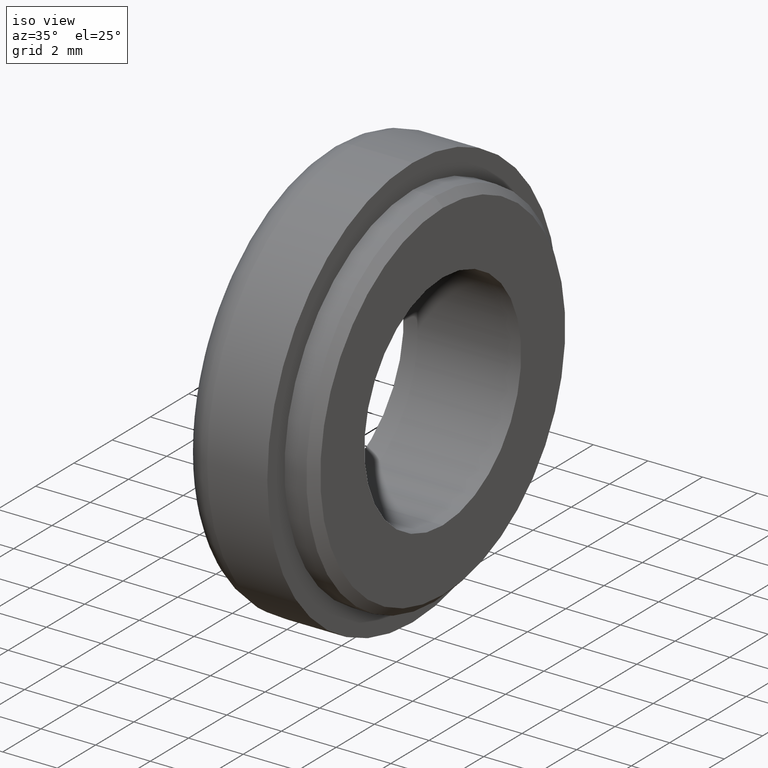
[diagram: clean part render]
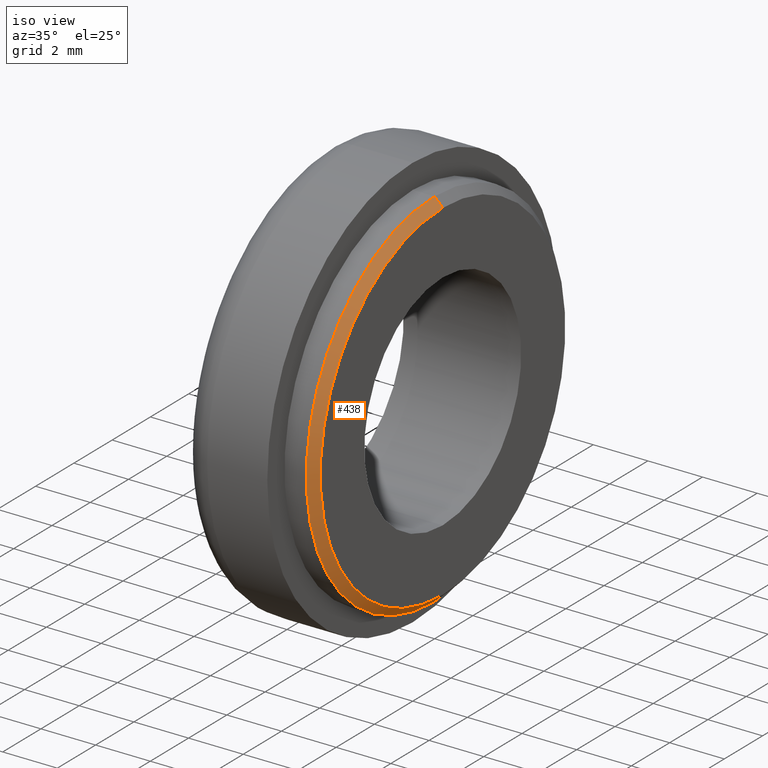
[diagram: same view with one face highlighted and labeled with its STEP entity id]
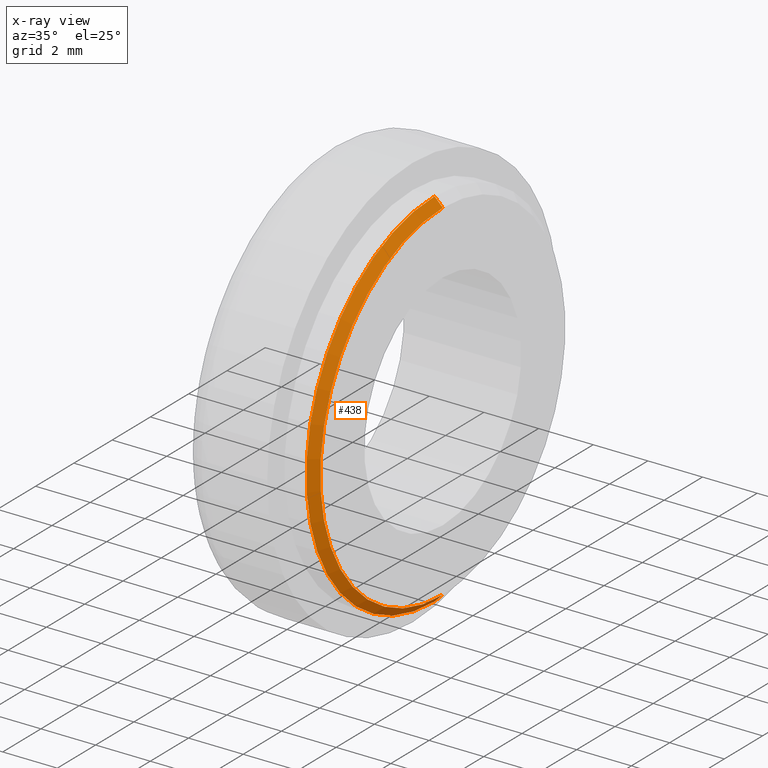
[diagram: x-ray of the same camera — body ghosted, the highlighted face saturated]
A machine part, iso view. The second image highlights one B-rep face of the part: STEP entity #438.
The next image is the same camera in x-ray: the body ghosted, the highlighted face saturated — about 0% of this face is hidden behind the body in this view.
In plain terms, the highlighted conical surface has half-angle 45 deg.
Its self-contained STEP definition (entity closure, byte-faithful):
#5 = EDGE_CURVE ( 'NONE', #442, #513, #127, .T. ) ;
#9 = DIRECTION ( 'NONE',  ( -1.000000000000000000, -0.0000000000000000000, -0.0000000000000000000 ) ) ;
#10 = CARTESIAN_POINT ( 'NONE',  ( 3.299999999999997200, 7.837739514543060900E-016, -6.400000000000000400 ) ) ;
#12 = ORIENTED_EDGE ( 'NONE', *, *, #604, .F. ) ;
#14 = DIRECTION ( 'NONE',  ( 0.0000000000000000000, 0.0000000000000000000, 1.000000000000000000 ) ) ;
#40 = VECTOR ( 'NONE', #611, 1000.000000000000000 ) ;
#57 = CONICAL_SURFACE ( 'NONE', #732, 6.400000000000000400, 0.7853981633974569400 ) ;
#119 = FACE_OUTER_BOUND ( 'NONE', #351, .T. ) ;
#127 = CIRCLE ( 'NONE', #610, 6.400000000000000400 ) ;
#165 = VECTOR ( 'NONE', #491, 1000.000000000000000 ) ;
#173 = DIRECTION ( 'NONE',  ( 0.0000000000000000000, 0.0000000000000000000, 1.000000000000000000 ) ) ;
#291 = CARTESIAN_POINT ( 'NONE',  ( 3.000000000000002700, 0.0000000000000000000, 0.0000000000000000000 ) ) ;
#300 = CIRCLE ( 'NONE', #362, 6.700000000000000200 ) ;
#304 = CARTESIAN_POINT ( 'NONE',  ( 3.000000000000002700, 8.205133554287266600E-016, -6.700000000000000200 ) ) ;
#314 = ORIENTED_EDGE ( 'NONE', *, *, #532, .F. ) ;
#332 = ORIENTED_EDGE ( 'NONE', *, *, #639, .T. ) ;
#351 = EDGE_LOOP ( 'NONE', ( #314, #433, #332, #12 ) ) ;
#356 = VERTEX_POINT ( 'NONE', #304 ) ;
#362 = AXIS2_PLACEMENT_3D ( 'NONE', #291, #672, #173 ) ;
#367 = CARTESIAN_POINT ( 'NONE',  ( 3.299999999999997200, 8.021436534415164200E-016, -6.400000000000000400 ) ) ;
#377 = LINE ( 'NONE', #465, #40 ) ;
#433 = ORIENTED_EDGE ( 'NONE', *, *, #5, .T. ) ;
#438 = ADVANCED_FACE ( 'NONE', ( #119 ), #57, .T. ) ;
#442 = VERTEX_POINT ( 'NONE', #367 ) ;
#465 = CARTESIAN_POINT ( 'NONE',  ( 3.299999999999997200, 0.0000000000000000000, 6.400000000000000400 ) ) ;
#491 = DIRECTION ( 'NONE',  ( -0.7071067811865414700, 8.659560562355008000E-017, -0.7071067811865536800 ) ) ;
#513 = VERTEX_POINT ( 'NONE', #596 ) ;
#532 = EDGE_CURVE ( 'NONE', #442, #356, #661, .T. ) ;
#581 = CARTESIAN_POINT ( 'NONE',  ( 3.299999999999997200, 0.0000000000000000000, 0.0000000000000000000 ) ) ;
#596 = CARTESIAN_POINT ( 'NONE',  ( 3.299999999999997200, 0.0000000000000000000, 6.400000000000000400 ) ) ;
#599 = VERTEX_POINT ( 'NONE', #678 ) ;
#604 = EDGE_CURVE ( 'NONE', #356, #599, #300, .T. ) ;
#610 = AXIS2_PLACEMENT_3D ( 'NONE', #687, #9, #618 ) ;
#611 = DIRECTION ( 'NONE',  ( -0.7071067811865414700, 0.0000000000000000000, 0.7071067811865536800 ) ) ;
#618 = DIRECTION ( 'NONE',  ( 0.0000000000000000000, 0.0000000000000000000, 1.000000000000000000 ) ) ;
#639 = EDGE_CURVE ( 'NONE', #513, #599, #377, .T. ) ;
#661 = LINE ( 'NONE', #10, #165 ) ;
#664 = DIRECTION ( 'NONE',  ( -1.000000000000000000, -0.0000000000000000000, -0.0000000000000000000 ) ) ;
#672 = DIRECTION ( 'NONE',  ( -1.000000000000000000, -0.0000000000000000000, -0.0000000000000000000 ) ) ;
#678 = CARTESIAN_POINT ( 'NONE',  ( 3.000000000000002700, 0.0000000000000000000, 6.700000000000000200 ) ) ;
#687 = CARTESIAN_POINT ( 'NONE',  ( 3.299999999999997200, 0.0000000000000000000, 0.0000000000000000000 ) ) ;
#732 = AXIS2_PLACEMENT_3D ( 'NONE', #581, #664, #14 ) ;